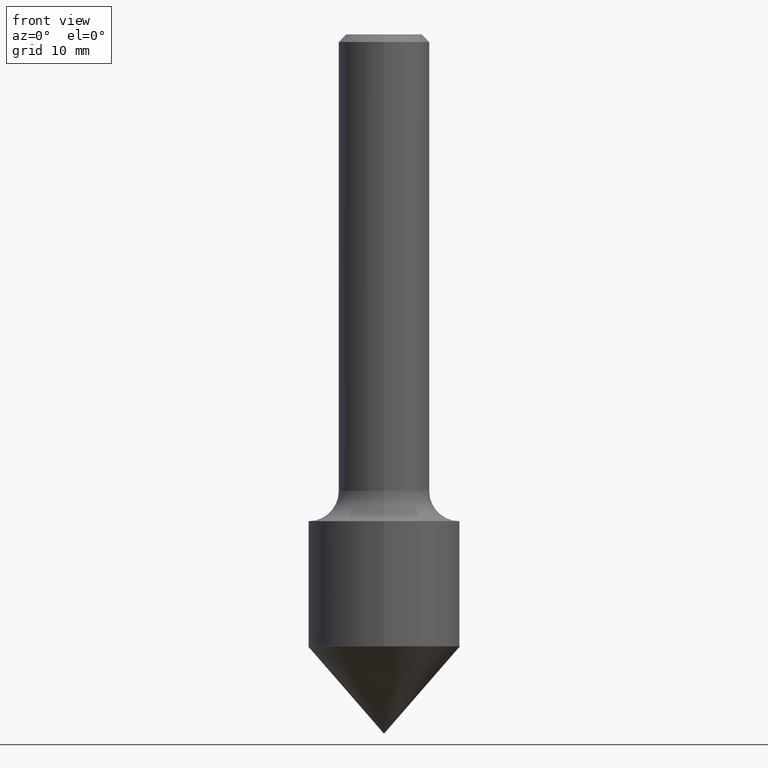
[diagram: clean part render]
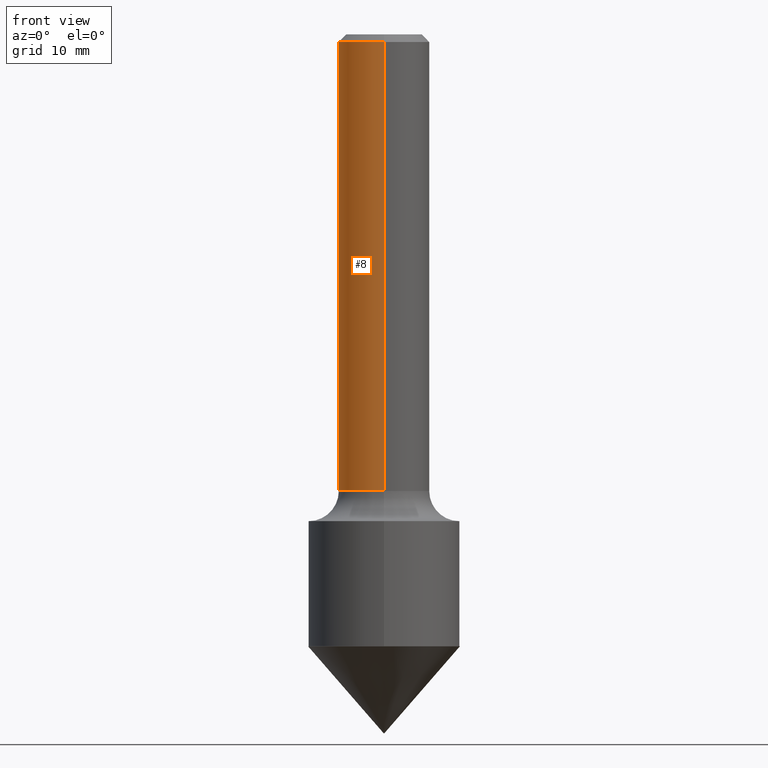
[diagram: same view with one face highlighted and labeled with its STEP entity id]
A machine part, front view. The second image highlights one B-rep face of the part: STEP entity #8.
In plain terms, the highlighted cylindrical surface (partial cylindrical patch) has radius 4.7625 mm, axis along (-0, 0, 1).
Its self-contained STEP definition (entity closure, byte-faithful):
#8 = ADVANCED_FACE ( 'NONE', ( #434 ), #134, .T. ) ;
#18 = CIRCLE ( 'NONE', #358, 0.1875000000000003331 ) ;
#22 = CARTESIAN_POINT ( 'NONE',  ( 0.000000000000000000, 0.000000000000000000, 0.000000000000000000 ) ) ;
#54 = CARTESIAN_POINT ( 'NONE',  ( 1.776356839400297402E-15, 0.1874999999999936995, -1.880000000000001004 ) ) ;
#69 = CARTESIAN_POINT ( 'NONE',  ( -1.286343374582161379E-15, -0.1875000000000001110, -0.03119999999999956142 ) ) ;
#78 = EDGE_CURVE ( 'NONE', #410, #416, #195, .T. ) ;
#113 = ORIENTED_EDGE ( 'NONE', *, *, #78, .F. ) ;
#120 = ORIENTED_EDGE ( 'NONE', *, *, #270, .F. ) ;
#124 = ORIENTED_EDGE ( 'NONE', *, *, #170, .T. ) ;
#126 = DIRECTION ( 'NONE',  ( -2.425980914324989080E-29, 3.519389109168798508E-15, 1.000000000000000000 ) ) ;
#134 = CYLINDRICAL_SURFACE ( 'NONE', #262, 0.1875000000000001943 ) ;
#140 = CARTESIAN_POINT ( 'NONE',  ( -1.309305502066131621E-15, -0.1875000000000069389, -1.879999999999999893 ) ) ;
#143 = VERTEX_POINT ( 'NONE', #54 ) ;
#149 = ORIENTED_EDGE ( 'NONE', *, *, #395, .T. ) ;
#153 = LINE ( 'NONE', #373, #208 ) ;
#170 = EDGE_CURVE ( 'NONE', #143, #183, #18, .T. ) ;
#177 = LINE ( 'NONE', #205, #309 ) ;
#183 = VERTEX_POINT ( 'NONE', #140 ) ;
#195 = CIRCLE ( 'NONE', #473, 0.1875000000000000278 ) ;
#205 = CARTESIAN_POINT ( 'NONE',  ( 1.332267629550188835E-15, 0.1875000000000001943, -6.598854579691503612E-16 ) ) ;
#208 = VECTOR ( 'NONE', #488, 39.37007874015748143 ) ;
#213 = DIRECTION ( 'NONE',  ( -2.425980914324989080E-29, 3.519389109168798508E-15, 1.000000000000000000 ) ) ;
#245 = DIRECTION ( 'NONE',  ( -2.425980914324989080E-29, 3.519389109168798508E-15, 1.000000000000000000 ) ) ;
#262 = AXIS2_PLACEMENT_3D ( 'NONE', #22, #245, #286 ) ;
#270 = EDGE_CURVE ( 'NONE', #143, #410, #177, .T. ) ;
#279 = DIRECTION ( 'NONE',  ( -6.982962677686265922E-15, -1.000000000000000000, 2.913971193241875639E-15 ) ) ;
#284 = CARTESIAN_POINT ( 'NONE',  ( 7.569060452694020354E-31, -1.098049402060672957E-16, -0.03120000000000022408 ) ) ;
#286 = DIRECTION ( 'NONE',  ( -6.982962677686265922E-15, -1.000000000000000000, 3.519389109168798114E-15 ) ) ;
#309 = VECTOR ( 'NONE', #356, 39.37007874015748143 ) ;
#331 = CARTESIAN_POINT ( 'NONE',  ( 1.309305502066175797E-15, 0.1874999999999999167, -0.03120000000000088675 ) ) ;
#355 = DIRECTION ( 'NONE',  ( -6.982962677686265922E-15, -1.000000000000000000, 3.528636991816339448E-15 ) ) ;
#356 = DIRECTION ( 'NONE',  ( -2.425980914324989080E-29, 3.519389109168798902E-15, 1.000000000000000000 ) ) ;
#358 = AXIS2_PLACEMENT_3D ( 'NONE', #471, #126, #279 ) ;
#373 = CARTESIAN_POINT ( 'NONE',  ( -1.309305502066176192E-15, -0.1875000000000001943, 6.598854579691503612E-16 ) ) ;
#395 = EDGE_CURVE ( 'NONE', #183, #416, #153, .T. ) ;
#410 = VERTEX_POINT ( 'NONE', #331 ) ;
#414 = EDGE_LOOP ( 'NONE', ( #120, #124, #149, #113 ) ) ;
#416 = VERTEX_POINT ( 'NONE', #69 ) ;
#434 = FACE_OUTER_BOUND ( 'NONE', #414, .T. ) ;
#471 = CARTESIAN_POINT ( 'NONE',  ( 4.560844118930980782E-29, -6.616451525237342394E-15, -1.880000000000000338 ) ) ;
#473 = AXIS2_PLACEMENT_3D ( 'NONE', #284, #213, #355 ) ;
#488 = DIRECTION ( 'NONE',  ( -2.425980914324989080E-29, 3.519389109168798902E-15, 1.000000000000000000 ) ) ;